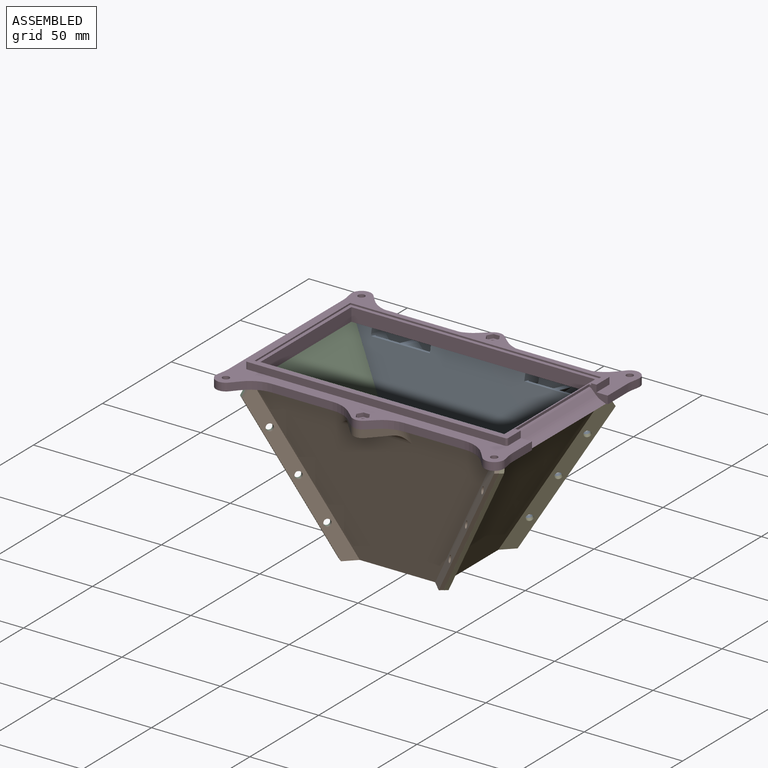
[diagram: assembled view]
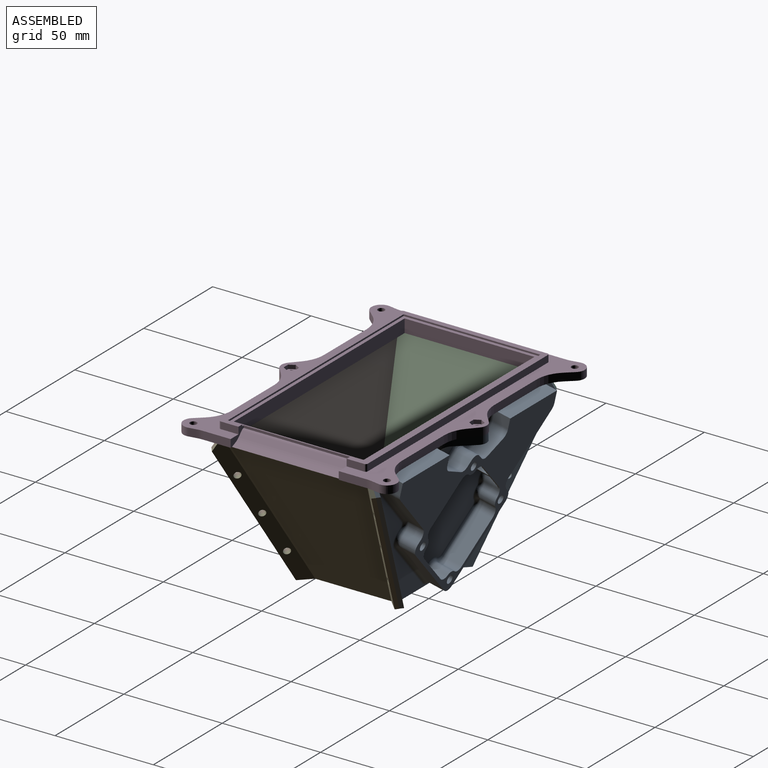
[diagram: assembled view, second angle]
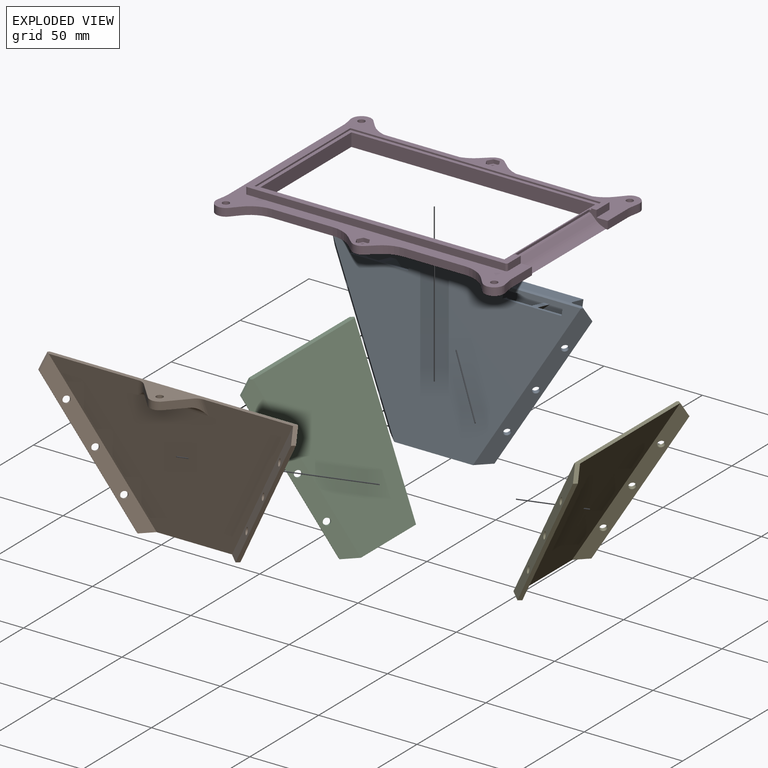
[diagram: exploded view]
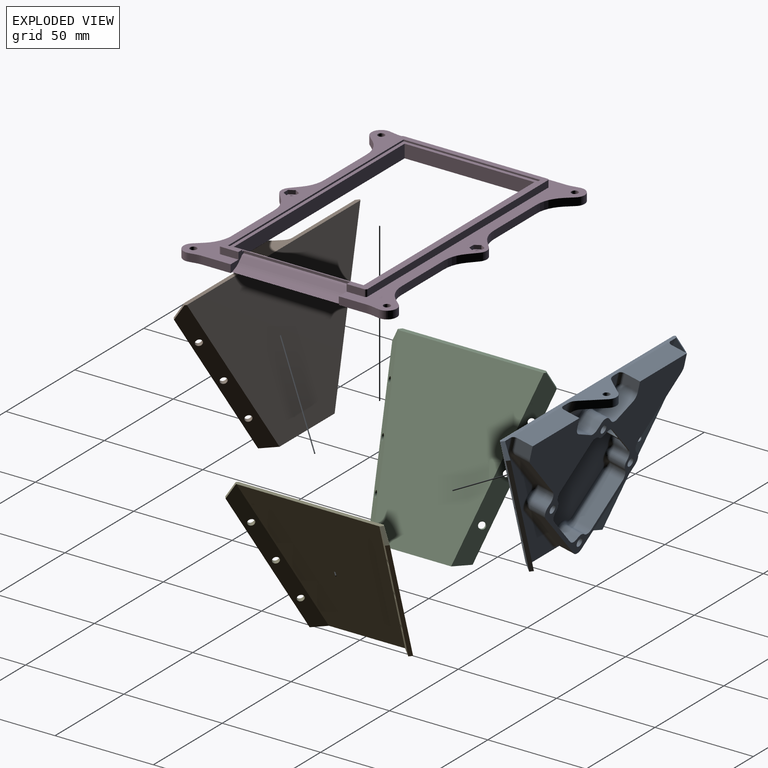
[diagram: exploded view, second angle]
ASSEMBLY  parts=5 mates=3
PART A: 176 faces, bbox 131.1x32.3x80.3 mm
  f0: plane 103.24x59.64mm, normal (0,-0.98,0.22), area 2638.9mm2, adj f14,f15,f91,f92,f125,f126,f127,f128
  f1: plane 47.62x34.35mm, normal (0,0.98,-0.22), area 724.2mm2, adj f10,f11,f12,f15,f70,f71,f78,f89
  f2: plane 7.47x3.54mm, normal (0,-0.98,0.22), area 20.1mm2, adj f21,f46,f158,f159,f160
  f3: plane 14.14x3.83mm, normal (0,-0.98,0.22), area 29.5mm2, adj f44,f152,f153,f154,f155
  f4: plane 7.47x3.54mm, normal (0,-0.98,0.22), area 20.1mm2, adj f21,f45,f142,f143,f144
  f5: plane 7.89x4.38mm, normal (0,-0.98,0.22), area 15.9mm2, adj f21,f22,f43,f123,f124
  f6: plane 7.89x4.38mm, normal (0,-0.98,0.22), area 15.9mm2, adj f21,f26,f42,f110,f111
  f7: plane 11.6x7.37mm, normal (1,0,0), area 51.8mm2, adj f14,f20,f77,f93,f96,f171
  f8: plane 11.35x5.14mm, normal (-1,0,0), area 31.1mm2, adj f20,f77,f93,f97
  f9: plane 12.15x8.26mm, normal (0.48,0.19,0.86), area 96.8mm2, adj f93,f96,f109,f169
  f10: plane 11.6x7.37mm, normal (-1,0,0), area 51.8mm2, adj f1,f15,f20,f78,f99,f161
  f11: plane 11.35x5.14mm, normal (1,0,0), area 31.1mm2, adj f1,f20,f78,f98
  f12: plane 12.15x8.26mm, normal (-0.48,0.19,0.86), area 96.8mm2, adj f1,f95,f99,f163
  f13: plane 112x75.01mm, normal (0,-0.98,0.22), area 2498.1mm2, adj f17,f19,f47,f48,f49,f50,f51,f52
  f14: plane 29.83x10.74mm, normal (0,-0.22,-0.98), area 88.1mm2, adj f0,f7,f20,f93,f97,f125,f171,f174
  f15: plane 29.83x10.74mm, normal (0,-0.22,-0.98), area 88.1mm2, adj f0,f1,f10,f20,f98,f141,f161,f172
  f16: plane 14.14x3.83mm, normal (0,-0.98,0.22), area 29.5mm2, adj f44,f147,f148,f149,f150
  f17: plane 8.3x3.95mm, normal (-0.71,-0.15,-0.69), area 25.8mm2, adj f13,f53,f100,f149
  f18: plane 113.12x66.99mm, normal (0,-0.98,0.22), area 1006.5mm2, adj f22,f26,f28,f29,f36,f111,f112,f113
  f19: plane 8.12x3.12mm, normal (0.71,-0.15,-0.69), area 16.2mm2, adj f13,f55,f102,f120
  f20: plane 126x77mm, normal (0,0.98,-0.22), area 6305mm2, adj f7,f8,f10,f11,f14,f15,f21,f23
  f21: plane 127.58x15.31mm, normal (0,0,-1), area 464.3mm2, adj f2,f4,f5,f6,f20,f23,f25,f37
  f22: plane 76.95x44.73mm, normal (-0.68,-0.69,-0.23), area 575.4mm2, adj f5,f18,f24,f28,f30,f31,f32,f36
  f23: plane 77x45.52mm, normal (0.68,0.69,0.23), area 661.1mm2, adj f20,f21,f24,f30,f31,f32,f36,f43
  f24: plane 69.9x40.66mm, normal (0.55,-0.69,0.46), area 163.1mm2, adj f22,f23,f36,f43
  f25: plane 77x45.52mm, normal (-0.68,0.69,0.23), area 661.1mm2, adj f20,f21,f27,f33,f34,f35,f36,f42
  f26: plane 76.95x44.73mm, normal (0.68,-0.69,-0.23), area 575.4mm2, adj f6,f18,f27,f29,f33,f34,f35,f36
  f27: plane 69.9x40.66mm, normal (-0.55,-0.69,0.46), area 163.1mm2, adj f25,f26,f36,f42
  f28: plane 0.03x0.03mm, normal (-0.48,0.19,0.86), area 0mm2, adj f18,f22,f36
  f29: plane 0.03x0.03mm, normal (0.48,0.19,0.86), area 0mm2, adj f18,f26,f36
  f30: cylinder r=1.72mm len=3.89mm, axis (-0.68,-0.69,-0.23), area 21.7mm2, adj f22,f23
  f31: cylinder r=1.72mm len=3.89mm, axis (-0.68,-0.69,-0.23), area 21.7mm2, adj f22,f23
  f32: cylinder r=1.72mm len=3.89mm, axis (-0.68,-0.69,-0.23), area 21.7mm2, adj f22,f23
  f33: cylinder r=1.72mm len=3.89mm, axis (0.68,-0.69,-0.23), area 21.7mm2, adj f25,f26
  f34: cylinder r=1.72mm len=3.89mm, axis (0.68,-0.69,-0.23), area 21.7mm2, adj f25,f26
  f35: cylinder r=1.72mm len=3.89mm, axis (0.68,-0.69,-0.23), area 21.7mm2, adj f25,f26
  f36: plane 52.96x7.66mm, normal (0,0,1), area 115.3mm2, adj f18,f20,f22,f23,f24,f25,f26,f27
  f37: plane 10.84x9.83mm, normal (-0.74,-0.67,0), area 55.6mm2, adj f21,f38,f41,f44,f45
  f38: cylinder r=5mm len=7.41mm, axis (0,0,-1), area 33.4mm2, adj f21,f37,f39,f41
  f39: plane 10.84x9.83mm, normal (0.74,-0.67,0), area 55.6mm2, adj f21,f38,f41,f44,f46
  f40: cylinder r=1.72mm len=4mm, axis (0,0,-1), area 43.4mm2, adj f21,f41
  f41: plane 22.6x10.02mm, normal (0,0,1), area 124.8mm2, adj f37,f38,f39,f40,f44
  f42: plane 7.1x5.37mm, normal (-0.53,-0.67,-0.52), area 17.2mm2, adj f6,f21,f25,f26,f27
  f43: plane 7.1x5.37mm, normal (0.53,-0.67,-0.52), area 17.2mm2, adj f5,f21,f22,f23,f24
  f44: cylinder r=5mm len=35.04mm, axis (-1,0,0), area 191.3mm2, adj f3,f16,f37,f39,f41,f45,f46,f146
  f45: cylinder r=5mm len=9.68mm, axis (0.19,-0.21,-0.96), area 27.2mm2, adj f4,f21,f37,f44,f145,f146
  f46: cylinder r=5mm len=9.68mm, axis (0.19,0.21,0.96), area 27.2mm2, adj f2,f21,f39,f44,f156,f157
  f47: cylinder r=4mm len=7.99mm, axis (0,0.98,-0.22), area 42.2mm2, adj f13,f69,f70,f166
  f48: cylinder r=4mm len=8.87mm, axis (0,0.98,-0.22), area 42.2mm2, adj f13,f71,f72,f137
  f49: plane 18.38x17.06mm, normal (0.71,-0.15,-0.69), area 193mm2, adj f13,f72,f73,f135
  f50: cylinder r=4mm len=7.99mm, axis (0,0.98,-0.22), area 42.2mm2, adj f13,f73,f74,f133
  f51: plane 18.38x17.06mm, normal (-0.71,-0.15,-0.69), area 193mm2, adj f13,f74,f75,f131
  f52: plane 8.12x3.12mm, normal (-0.71,-0.15,-0.69), area 16.2mm2, adj f13,f59,f101,f114
  f53: cylinder r=4mm len=8.06mm, axis (0,0.98,-0.22), area 50.3mm2, adj f13,f17,f54,f150,f151,f152
  f54: plane 8.3x3.95mm, normal (0.71,-0.15,-0.69), area 25.8mm2, adj f13,f53,f103,f153
  f55: cylinder r=4mm len=9.03mm, axis (0,0.98,-0.22), area 50.3mm2, adj f13,f19,f56,f119
  f56: plane 30.73x29.7mm, normal (0.71,0.15,0.69), area 336mm2, adj f13,f55,f57,f118
  f57: cylinder r=4mm len=8.06mm, axis (0,0.98,-0.22), area 50.3mm2, adj f13,f56,f58,f117
  f58: plane 30.73x29.7mm, normal (-0.71,0.15,0.69), area 336mm2, adj f13,f57,f59,f116
  f59: cylinder r=4mm len=9.03mm, axis (0,0.98,-0.22), area 50.3mm2, adj f13,f52,f58,f115
  f60: cylinder r=2mm len=10.63mm, axis (0,0.98,-0.22), area 125.7mm2, adj f13,f68
  f61: cylinder r=2mm len=10.63mm, axis (0,0.98,-0.22), area 125.7mm2, adj f13,f67
  f62: cylinder r=2mm len=10.63mm, axis (0,0.98,-0.22), area 125.7mm2, adj f13,f66
  f63: cylinder r=2mm len=10.63mm, axis (0,0.98,-0.22), area 125.7mm2, adj f13,f65
  f64: cylinder r=4mm len=8.87mm, axis (0,0.98,-0.22), area 42.2mm2, adj f13,f75,f76,f129
  f65: plane 4x3.91mm, normal (0,-0.98,0.22), area 12.6mm2, adj f63
  f66: plane 4x3.91mm, normal (0,-0.98,0.22), area 12.6mm2, adj f62
  f67: plane 4x3.91mm, normal (0,-0.98,0.22), area 12.6mm2, adj f61
  f68: plane 4x3.91mm, normal (0,-0.98,0.22), area 12.6mm2, adj f60
  f69: cylinder r=4mm len=8.06mm, axis (0,0.98,-0.22), area 34.8mm2, adj f13,f47,f92,f93,f109,f167
  f70: cylinder r=4mm len=8.06mm, axis (0,0.98,-0.22), area 34.8mm2, adj f1,f13,f47,f91,f95,f165
  f71: cylinder r=4mm len=8.95mm, axis (0,0.98,-0.22), area 31.5mm2, adj f1,f13,f48,f91,f108,f138
  f72: cylinder r=4mm len=8.95mm, axis (0,0.98,-0.22), area 46.3mm2, adj f13,f48,f49,f136
  f73: cylinder r=4mm len=8.06mm, axis (0,0.98,-0.22), area 46.3mm2, adj f13,f49,f50,f134
  f74: cylinder r=4mm len=8.06mm, axis (0,0.98,-0.22), area 46.3mm2, adj f13,f50,f51,f132
  f75: cylinder r=4mm len=8.95mm, axis (0,0.98,-0.22), area 46.3mm2, adj f13,f51,f64,f130
  f76: cylinder r=4mm len=8.95mm, axis (0,0.98,-0.22), area 31.5mm2, adj f13,f64,f92,f93,f94,f128
  f77: plane 30x10.74mm, normal (0,0.22,0.98), area 330mm2, adj f7,f8,f20,f93
  f78: plane 30x10.74mm, normal (0,0.22,0.98), area 330mm2, adj f1,f10,f11,f20
  f79: plane 8.98x7.03mm, normal (-1,0,0), area 43.4mm2, adj f13,f80,f106,f160
  f80: plane 38x9.77mm, normal (0,-0.22,-0.98), area 341.7mm2, adj f13,f21,f79,f81,f124,f160
  f81: plane 9.18x7.93mm, normal (1,0,0), area 50.9mm2, adj f13,f80,f107,f124
  f82: plane 9.18x7.93mm, normal (-1,0,0), area 50.9mm2, adj f13,f83,f105,f110
  f83: plane 38x9.77mm, normal (0,-0.22,-0.98), area 341.7mm2, adj f13,f21,f82,f84,f110,f142
  f84: plane 8.98x7.03mm, normal (1,0,0), area 43.4mm2, adj f13,f83,f104,f142
  f85: plane 10.07x8.81mm, normal (-0.42,-0.2,-0.89), area 88.5mm2, adj f13,f103,f106,f155,f156,f157,f158
  f86: plane 25.2x23.77mm, normal (0.71,0.15,0.69), area 270.5mm2, adj f13,f102,f107,f122
  f87: plane 25.2x23.77mm, normal (-0.71,0.15,0.69), area 270.5mm2, adj f13,f101,f105,f112
  f88: plane 10.07x8.81mm, normal (0.42,-0.2,-0.89), area 88.5mm2, adj f13,f100,f104,f144,f145,f146,f147
  f89: plane 26.54x25.93mm, normal (0.7,-0.15,-0.69), area 255.2mm2, adj f1,f98,f108,f140
  f90: plane 26.54x25.93mm, normal (-0.7,-0.15,-0.69), area 255.2mm2, adj f93,f94,f97,f126
  f91: plane 17.06x16.87mm, normal (0.71,0.15,0.69), area 42.1mm2, adj f0,f1,f13,f70,f71,f172,f173
  f92: plane 17.06x16.87mm, normal (-0.71,0.15,0.69), area 42.1mm2, adj f0,f13,f69,f76,f93,f174,f175
  f93: plane 47.62x34.35mm, normal (0,0.98,-0.22), area 724.2mm2, adj f7,f8,f9,f14,f69,f76,f77,f90
  f94: cylinder r=4mm len=7.67mm, axis (0,0.98,-0.22), area 29.4mm2, adj f76,f90,f93,f127
  f95: cylinder r=4mm len=6.94mm, axis (0,0.98,-0.22), area 24.5mm2, adj f1,f12,f70,f164
  f96: cylinder r=4mm len=7.59mm, axis (0,-0.98,0.22), area 30.1mm2, adj f7,f9,f93,f170
  f97: cylinder r=4mm len=11.35mm, axis (0,-0.98,0.22), area 26.9mm2, adj f8,f14,f20,f90,f93,f125
  f98: cylinder r=4mm len=11.35mm, axis (0,-0.98,0.22), area 26.9mm2, adj f1,f11,f15,f20,f89,f141
  f99: cylinder r=4mm len=7.59mm, axis (0,0.98,-0.22), area 30.1mm2, adj f1,f10,f12,f162
  f100: cylinder r=4mm len=8.06mm, axis (0,-0.98,0.22), area 38.9mm2, adj f13,f17,f88,f148
  f101: cylinder r=4mm len=9.03mm, axis (0,-0.98,0.22), area 50.1mm2, adj f13,f52,f87,f113
  f102: cylinder r=4mm len=9.03mm, axis (0,-0.98,0.22), area 50.1mm2, adj f13,f19,f86,f121
  f103: cylinder r=4mm len=8.06mm, axis (0,-0.98,0.22), area 38.9mm2, adj f13,f54,f85,f154
  f104: cylinder r=4mm len=8.6mm, axis (0,-0.98,0.22), area 36.5mm2, adj f13,f84,f88,f143
  f105: cylinder r=4mm len=8.42mm, axis (0,0.98,-0.22), area 24.9mm2, adj f13,f82,f87,f111
  f106: cylinder r=4mm len=8.6mm, axis (0,-0.98,0.22), area 36.5mm2, adj f13,f79,f85,f159
  f107: cylinder r=4mm len=8.42mm, axis (0,0.98,-0.22), area 24.9mm2, adj f13,f81,f86,f123
  f108: cylinder r=4mm len=7.67mm, axis (0,0.98,-0.22), area 29.4mm2, adj f1,f71,f89,f139
  f109: cylinder r=4mm len=6.94mm, axis (0,0.98,-0.22), area 24.5mm2, adj f9,f69,f93,f168
  f110: cylinder r=2mm len=6.64mm, axis (0,0.22,0.98), area 20mm2, adj f6,f82,f83,f111
  f111: torus R=6mm, axis (0,0.98,-0.22), area 11.4mm2, adj f6,f18,f26,f105,f110,f112
  f112: cylinder r=2mm len=25.19mm, axis (-0.7,-0.15,-0.69), area 106.2mm2, adj f18,f87,f111,f113
  f113: torus R=2mm, axis (0,0.98,-0.22), area 16.1mm2, adj f18,f101,f112,f114
  f114: cylinder r=2mm len=3.21mm, axis (-0.71,0.15,0.69), area 6.4mm2, adj f18,f52,f113,f115
  f115: torus R=6mm, axis (0,0.98,-0.22), area 23.3mm2, adj f18,f59,f114,f116
  f116: cylinder r=2mm len=31.11mm, axis (0.71,0.15,0.69), area 131.9mm2, adj f18,f58,f115,f117
  f117: torus R=6mm, axis (0,0.98,-0.22), area 23.3mm2, adj f18,f57,f116,f118
  f118: cylinder r=2mm len=31.11mm, axis (0.71,-0.15,-0.69), area 131.9mm2, adj f18,f56,f117,f119
  f119: torus R=6mm, axis (0,0.98,-0.22), area 23.3mm2, adj f18,f55,f118,f120
  f120: cylinder r=2mm len=3.21mm, axis (-0.71,-0.15,-0.69), area 6.4mm2, adj f18,f19,f119,f121
  f121: torus R=2mm, axis (0,0.98,-0.22), area 16.1mm2, adj f18,f102,f120,f122
  f122: cylinder r=2mm len=25.19mm, axis (-0.7,0.15,0.69), area 106.2mm2, adj f18,f86,f121,f123
  f123: torus R=6mm, axis (0,0.98,-0.22), area 11.4mm2, adj f5,f18,f22,f107,f122,f124
  f124: cylinder r=2mm len=6.64mm, axis (0,-0.22,-0.98), area 20mm2, adj f5,f80,f81,f123
  f125: torus R=2mm, axis (0,0.98,-0.22), area 4.4mm2, adj f0,f14,f97,f126
  f126: cylinder r=2mm len=27.33mm, axis (0.71,-0.15,-0.69), area 114.5mm2, adj f0,f90,f125,f127
  f127: torus R=6mm, axis (0,0.98,-0.22), area 15.6mm2, adj f0,f94,f126,f128
  f128: torus R=2mm, axis (0,0.98,-0.22), area 9.5mm2, adj f0,f76,f127,f129
  f129: torus R=6mm, axis (0,0.98,-0.22), area 19.6mm2, adj f0,f64,f128,f130
  f130: torus R=2mm, axis (0,0.98,-0.22), area 14.9mm2, adj f0,f75,f129,f131
  f131: cylinder r=2mm len=18.47mm, axis (-0.71,0.15,0.69), area 75.8mm2, adj f0,f51,f130,f132
  f132: torus R=2mm, axis (0,0.98,-0.22), area 14.9mm2, adj f0,f74,f131,f133
  f133: torus R=6mm, axis (0,0.98,-0.22), area 19.6mm2, adj f0,f50,f132,f134
  f134: torus R=2mm, axis (0,0.98,-0.22), area 14.9mm2, adj f0,f73,f133,f135
  f135: cylinder r=2mm len=18.47mm, axis (-0.71,-0.15,-0.69), area 75.8mm2, adj f0,f49,f134,f136
  f136: torus R=2mm, axis (0,0.98,-0.22), area 14.9mm2, adj f0,f72,f135,f137
  f137: torus R=6mm, axis (0,0.98,-0.22), area 19.6mm2, adj f0,f48,f136,f138
  f138: torus R=2mm, axis (0,0.98,-0.22), area 9.5mm2, adj f0,f71,f137,f139
  f139: torus R=6mm, axis (0,0.98,-0.22), area 15.6mm2, adj f0,f108,f138,f140
  f140: cylinder r=2mm len=27.33mm, axis (0.71,0.15,0.69), area 114.5mm2, adj f0,f89,f139,f141
  f141: torus R=2mm, axis (0,0.98,-0.22), area 4.4mm2, adj f0,f15,f98,f140
  f142: cylinder r=2mm len=5.73mm, axis (0,-0.22,-0.98), area 17.1mm2, adj f4,f83,f84,f143
  f143: torus R=2mm, axis (0,0.98,-0.22), area 11.7mm2, adj f4,f104,f142,f144
  f144: cylinder r=2mm len=2.6mm, axis (0.91,0.09,0.41), area 3mm2, adj f4,f88,f143,f145
  f145: bspline ~2.51x2.05mm, area 1.2mm2, adj f45,f88,f144,f146
  f146: bspline ~4.3x4.13mm, area 2.5mm2, adj f44,f45,f88,f145,f147
  f147: cylinder r=2mm len=9.01mm, axis (0.91,0.09,0.41), area 28.3mm2, adj f16,f88,f146,f148
  f148: torus R=2mm, axis (0,0.98,-0.22), area 12.5mm2, adj f16,f100,f147,f149
  f149: cylinder r=2mm len=4.04mm, axis (-0.71,0.15,0.69), area 10.1mm2, adj f16,f17,f148,f150
  f150: torus R=6mm, axis (0,0.98,-0.22), area 4.4mm2, adj f16,f53,f149,f151
  f151: bspline ~7.33x3.63mm, area 16.3mm2, adj f44,f53,f150,f152
  f152: torus R=6mm, axis (0,0.98,-0.22), area 4.4mm2, adj f3,f53,f151,f153
  f153: cylinder r=2mm len=4.04mm, axis (-0.71,-0.15,-0.69), area 10.1mm2, adj f3,f54,f152,f154
  f154: torus R=2mm, axis (0,0.98,-0.22), area 12.5mm2, adj f3,f103,f153,f155
  f155: cylinder r=2mm len=9.01mm, axis (0.91,-0.09,-0.41), area 28.3mm2, adj f3,f85,f154,f156
  f156: bspline ~4.3x4.13mm, area 2.5mm2, adj f44,f46,f85,f155,f157
  f157: bspline ~2.51x2.05mm, area 1.2mm2, adj f46,f85,f156,f158
  f158: cylinder r=2mm len=2.6mm, axis (0.91,-0.09,-0.41), area 3mm2, adj f2,f85,f157,f159
  f159: torus R=2mm, axis (0,0.98,-0.22), area 11.7mm2, adj f2,f106,f158,f160
  f160: cylinder r=2mm len=5.73mm, axis (0,0.22,0.98), area 17.1mm2, adj f2,f79,f80,f159
  f161: cylinder r=2mm len=2.19mm, axis (0,-0.22,-0.98), area 3.5mm2, adj f0,f10,f15,f162
  f162: torus R=6mm, axis (0,0.98,-0.22), area 15.9mm2, adj f0,f99,f161,f163
  f163: cylinder r=2mm len=13.11mm, axis (-0.88,-0.1,-0.47), area 43.4mm2, adj f0,f12,f162,f164
  f164: torus R=6mm, axis (0,0.98,-0.22), area 13mm2, adj f0,f95,f163,f165
  f165: torus R=2mm, axis (0,0.98,-0.22), area 10.7mm2, adj f0,f70,f164,f166
  f166: torus R=6mm, axis (0,0.98,-0.22), area 19.6mm2, adj f0,f47,f165,f167
  f167: torus R=2mm, axis (0,0.98,-0.22), area 10.7mm2, adj f0,f69,f166,f168
  f168: torus R=6mm, axis (0,0.98,-0.22), area 13mm2, adj f0,f109,f167,f169
  f169: cylinder r=2mm len=13.11mm, axis (-0.88,0.1,0.47), area 43.4mm2, adj f0,f9,f168,f170
  f170: torus R=6mm, axis (0,0.98,-0.22), area 15.9mm2, adj f0,f96,f169,f171
  f171: cylinder r=2mm len=2.19mm, axis (0,0.22,0.98), area 3.5mm2, adj f0,f7,f14,f170
  f172: plane 23.51x22.99mm, normal (-0.68,0.16,0.72), area 287.1mm2, adj f0,f1,f15,f91
  f173: plane 21.96x21.61mm, normal (0.68,-0.16,-0.72), area 268.2mm2, adj f0,f1,f15,f91
  f174: plane 23.51x22.99mm, normal (0.68,0.16,0.72), area 287.1mm2, adj f0,f14,f92,f93
  f175: plane 21.96x21.61mm, normal (-0.68,-0.16,-0.72), area 268.2mm2, adj f0,f14,f92,f93
PART B: 28 faces, bbox 131x32.2x78.1 mm
  f0: plane 124.25x77mm, normal (0,-0.98,0.22), area 6131.4mm2, adj f1,f3,f7,f9,f10,f17,f23,f24
  f1: plane 127.46x15.2mm, normal (0,0,-1), area 464.3mm2, adj f0,f2,f4,f6,f18,f19,f20,f21
  f2: plane 126x77mm, normal (0,0.98,-0.22), area 6544.9mm2, adj f1,f4,f6,f17
  f3: plane 76.95x44.73mm, normal (-0.68,-0.69,-0.23), area 575.4mm2, adj f0,f5,f9,f11,f12,f13,f17,f24
  f4: plane 77x45.52mm, normal (0.68,0.69,0.23), area 661.1mm2, adj f1,f2,f5,f11,f12,f13,f17,f24
  f5: plane 69.9x40.66mm, normal (0.55,-0.69,0.46), area 163.1mm2, adj f3,f4,f17,f24
  f6: plane 77x45.52mm, normal (-0.68,0.69,0.23), area 661.1mm2, adj f1,f2,f8,f14,f15,f16,f17,f23
  f7: plane 76.95x44.73mm, normal (0.68,-0.69,-0.23), area 575.4mm2, adj f0,f8,f10,f14,f15,f16,f17,f23
  f8: plane 69.9x40.66mm, normal (-0.55,-0.69,0.46), area 163.1mm2, adj f6,f7,f17,f23
  f9: plane 0.03x0.03mm, normal (-0.48,0.19,0.86), area 0mm2, adj f0,f3,f17
  f10: plane 0.03x0.03mm, normal (0.48,0.19,0.86), area 0mm2, adj f0,f7,f17
  f11: cylinder r=1.72mm len=3.89mm, axis (-0.68,-0.69,-0.23), area 21.7mm2, adj f3,f4
  f12: cylinder r=1.72mm len=3.89mm, axis (-0.68,-0.69,-0.23), area 21.7mm2, adj f3,f4
  f13: cylinder r=1.72mm len=3.89mm, axis (-0.68,-0.69,-0.23), area 21.7mm2, adj f3,f4
  f14: cylinder r=1.72mm len=3.89mm, axis (0.68,-0.69,-0.23), area 21.7mm2, adj f6,f7
  f15: cylinder r=1.72mm len=3.89mm, axis (0.68,-0.69,-0.23), area 21.7mm2, adj f6,f7
  f16: cylinder r=1.72mm len=3.89mm, axis (0.68,-0.69,-0.23), area 21.7mm2, adj f6,f7
  f17: plane 52.96x7.66mm, normal (0,0,1), area 115.3mm2, adj f0,f2,f3,f4,f5,f6,f7,f8
  f18: plane 10.77x9.76mm, normal (-0.74,-0.67,0), area 55.6mm2, adj f1,f19,f22,f25,f26
  f19: cylinder r=5mm len=7.41mm, axis (0,0,-1), area 33.4mm2, adj f1,f18,f20,f22
  f20: plane 10.77x9.76mm, normal (0.74,-0.67,0), area 55.6mm2, adj f1,f19,f22,f25,f27
  f21: cylinder r=1.72mm len=4mm, axis (0,0,-1), area 43.4mm2, adj f1,f22
  f22: plane 22.6x10.02mm, normal (0,0,1), area 124.8mm2, adj f18,f19,f20,f21,f25
  f23: plane 7.1x5.37mm, normal (-0.53,-0.67,-0.52), area 17.2mm2, adj f0,f1,f6,f7,f8
  f24: plane 7.1x5.37mm, normal (0.53,-0.67,-0.52), area 17.2mm2, adj f0,f1,f3,f4,f5
  f25: cylinder r=5mm len=36.1mm, axis (-1,0,0), area 195.3mm2, adj f0,f18,f20,f22,f26,f27
  f26: cylinder r=5mm len=10.08mm, axis (0.19,-0.21,-0.96), area 27.2mm2, adj f0,f1,f18,f25
  f27: cylinder r=5mm len=10.08mm, axis (0.19,0.21,0.96), area 27.2mm2, adj f0,f1,f20,f25
PART C: 18 faces, bbox 47.1x83.6x77 mm
  f0: plane 77x72.74mm, normal (0.87,0,0.49), area 4916.2mm2, adj f3,f6,f14,f15
  f1: plane 77x74mm, normal (-0.87,0,-0.49), area 5027mm2, adj f2,f5,f14,f15
  f2: plane 77x45.52mm, normal (-0.68,-0.69,-0.23), area 661.1mm2, adj f1,f4,f11,f12,f13,f14,f15,f17
  f3: plane 77x44.85mm, normal (0.68,0.69,0.23), area 586.7mm2, adj f0,f4,f11,f12,f13,f14,f15,f17
  f4: plane 69.9x40.66mm, normal (0.55,-0.69,0.46), area 163.1mm2, adj f2,f3,f15,f17
  f5: plane 77x45.52mm, normal (-0.68,0.69,-0.23), area 661.1mm2, adj f1,f7,f8,f9,f10,f14,f15,f16
  f6: plane 77x44.85mm, normal (0.68,-0.69,0.23), area 586.7mm2, adj f0,f7,f8,f9,f10,f14,f15,f16
  f7: plane 69.9x40.66mm, normal (0.55,0.69,0.46), area 163.1mm2, adj f5,f6,f15,f16
  f8: cylinder r=1.72mm len=3.89mm, axis (0.68,-0.69,0.23), area 21.7mm2, adj f5,f6
  f9: cylinder r=1.72mm len=3.89mm, axis (0.68,-0.69,0.23), area 21.7mm2, adj f5,f6
  f10: cylinder r=1.72mm len=3.89mm, axis (0.68,-0.69,0.23), area 21.7mm2, adj f5,f6
  f11: cylinder r=1.72mm len=3.89mm, axis (0.68,0.69,0.23), area 21.7mm2, adj f2,f3
  f12: cylinder r=1.72mm len=3.89mm, axis (0.68,0.69,0.23), area 21.7mm2, adj f2,f3
  f13: cylinder r=1.72mm len=3.89mm, axis (0.68,0.69,0.23), area 21.7mm2, adj f2,f3
  f14: plane 75.44x2.35mm, normal (0,0,-1), area 170.4mm2, adj f0,f1,f2,f3,f5,f6,f16,f17
  f15: plane 52.74x8.1mm, normal (0,0,1), area 125.6mm2, adj f0,f1,f2,f3,f4,f5,f6,f7
  f16: plane 7.1x5.37mm, normal (0.53,0.67,-0.52), area 17.2mm2, adj f5,f6,f7,f14
  f17: plane 7.1x5.37mm, normal (0.53,-0.67,-0.52), area 17.2mm2, adj f2,f3,f4,f14
PART D: 120 faces, bbox 146.4x108.4x7.5 mm
  f0: plane 4.99x3.83mm, normal (0,-1,0), area 11.4mm2, adj f4,f14,f15,f20,f46,f115,f117,f118
  f1: plane 4.99x3.83mm, normal (0,1,0), area 11.4mm2, adj f3,f5,f14,f20,f50,f115,f117,f118
  f2: plane 14.27x4mm, normal (1,0,0), area 57.1mm2, adj f4,f10,f13,f68
  f3: plane 9x3.5mm, normal (1,0,0), area 31.5mm2, adj f1,f10,f20,f53
  f4: plane 5.7x4mm, normal (0,-1,0), area 17.7mm2, adj f0,f2,f10,f13,f116,f117
  f5: plane 5.7x4mm, normal (0,1,0), area 17.7mm2, adj f1,f10,f13,f32,f116,f117
  f6: cylinder r=1.72mm len=3.45mm, axis (0,0,-1), area 19.5mm2, adj f10,f114
  f7: cylinder r=1.72mm len=3.45mm, axis (0,0,-1), area 19.5mm2, adj f10,f113
  f8: cylinder r=1.72mm len=3.45mm, axis (0,0,-1), area 19.5mm2, adj f10,f112
  f9: cylinder r=1.72mm len=3.45mm, axis (0,0,-1), area 19.5mm2, adj f10,f111
  f10: plane 146.4x108.4mm, normal (0,0,1), area 2889mm2, adj f2,f3,f4,f5,f6,f7,f8,f9
  f11: cylinder r=1.72mm len=3.45mm, axis (0,0,-1), area 21.7mm2, adj f13,f110
  f12: cylinder r=1.72mm len=3.45mm, axis (0,0,-1), area 21.7mm2, adj f13,f103
  f13: plane 146.4x108.4mm, normal (0,0,-1), area 4904mm2, adj f2,f4,f5,f11,f12,f16,f17,f18
  f14: plane 127.5x69.5mm, normal (0,0,1), area 617.9mm2, adj f0,f1,f15,f16,f17,f18,f19,f49
  f15: plane 7.25x0.8mm, normal (-1,0,0), area 5.8mm2, adj f0,f14,f20,f51
  f16: plane 66x6.7mm, normal (1,0,0), area 442.2mm2, adj f13,f14,f17,f19
  f17: plane 124x6.7mm, normal (0,-1,0), area 830.8mm2, adj f13,f14,f16,f18
  f18: plane 66x6.7mm, normal (-1,0,0), area 442.2mm2, adj f13,f14,f17,f19
  f19: plane 124x6.7mm, normal (0,1,0), area 830.8mm2, adj f13,f14,f16,f18
  f20: plane 133x75mm, normal (0,0,1), area 961.6mm2, adj f0,f1,f3,f15,f45,f46,f47,f48
  f21: plane 4x3.71mm, normal (-0.98,0.18,0), area 15.1mm2, adj f10,f13,f22,f58
  f22: cylinder r=5mm len=8.74mm, axis (0,0,-1), area 51.9mm2, adj f10,f13,f21,f23
  f23: plane 4x3.93mm, normal (0.75,-0.66,0), area 21mm2, adj f10,f13,f22,f57
  f24: plane 30.91x4mm, normal (0,-1,0), area 123.6mm2, adj f10,f13,f57,f59
  f25: plane 4.12x4mm, normal (-0.67,-0.75,0), area 22.1mm2, adj f10,f13,f26,f59
  f26: cylinder r=5mm len=6.65mm, axis (0,0,-1), area 29.1mm2, adj f10,f13,f25,f27
  f27: plane 4.12x4mm, normal (0.67,-0.75,0), area 22.1mm2, adj f10,f13,f26,f60
  f28: plane 30.91x4mm, normal (0,-1,0), area 123.6mm2, adj f10,f13,f60,f62
  f29: plane 4x3.93mm, normal (-0.75,-0.66,0), area 21mm2, adj f10,f13,f30,f62
  f30: cylinder r=5mm len=8.74mm, axis (0,0,-1), area 51.9mm2, adj f10,f13,f29,f31
  f31: plane 4x3.71mm, normal (0.98,0.18,0), area 15.1mm2, adj f10,f13,f30,f61
  f32: plane 14.27x4mm, normal (1,0,0), area 57.1mm2, adj f5,f10,f13,f61
  f33: plane 4x3.71mm, normal (0.98,-0.18,0), area 15.1mm2, adj f10,f13,f34,f68
  f34: cylinder r=5mm len=8.74mm, axis (0,0,-1), area 51.9mm2, adj f10,f13,f33,f35
  f35: plane 4x3.93mm, normal (-0.75,0.66,0), area 21mm2, adj f10,f13,f34,f67
  f36: plane 30.91x4mm, normal (0,1,0), area 123.6mm2, adj f10,f13,f66,f67
  f37: plane 4.12x4mm, normal (0.67,0.75,0), area 22.1mm2, adj f10,f13,f38,f66
  f38: cylinder r=5mm len=6.65mm, axis (0,0,-1), area 29.1mm2, adj f10,f13,f37,f39
  f39: plane 4.12x4mm, normal (-0.67,0.75,0), area 22.1mm2, adj f10,f13,f38,f65
  f40: plane 30.91x4mm, normal (0,1,0), area 123.6mm2, adj f10,f13,f64,f65
  f41: plane 4x3.93mm, normal (0.75,0.66,0), area 21mm2, adj f10,f13,f42,f64
  f42: cylinder r=5mm len=8.74mm, axis (0,0,-1), area 51.9mm2, adj f10,f13,f41,f43
  f43: plane 4x3.71mm, normal (-0.98,-0.18,0), area 15.1mm2, adj f10,f13,f42,f63
  f44: plane 83.54x4mm, normal (-1,0,0), area 334.2mm2, adj f10,f13,f58,f63
  f45: plane 131x3.5mm, normal (0,-1,0), area 458.5mm2, adj f10,f20,f53,f56
  f46: plane 9x3.5mm, normal (1,0,0), area 31.5mm2, adj f0,f10,f20,f54
  f47: plane 131x3.5mm, normal (0,1,0), area 458.5mm2, adj f10,f20,f54,f55
  f48: plane 73x3.5mm, normal (-1,0,0), area 255.5mm2, adj f10,f20,f55,f56
  f49: plane 127.5x0.8mm, normal (0,1,0), area 102mm2, adj f14,f20,f50,f52
  f50: plane 7.25x0.8mm, normal (-1,0,0), area 5.8mm2, adj f1,f14,f20,f49
  f51: plane 127.5x0.8mm, normal (0,-1,0), area 102mm2, adj f14,f15,f20,f52
  f52: plane 69.5x0.8mm, normal (1,0,0), area 55.6mm2, adj f14,f20,f49,f51
  f53: cylinder r=1mm len=3.5mm, axis (0,0,-1), area 5.5mm2, adj f3,f10,f20,f45
  f54: cylinder r=1mm len=3.5mm, axis (0,0,1), area 5.5mm2, adj f10,f20,f46,f47
  f55: cylinder r=1mm len=3.5mm, axis (0,0,-1), area 5.5mm2, adj f10,f20,f47,f48
  f56: cylinder r=1mm len=3.5mm, axis (0,0,1), area 5.5mm2, adj f10,f20,f45,f48
  f57: cylinder r=16mm len=11.97mm, axis (0,0,-1), area 54.1mm2, adj f10,f13,f23,f24
  f58: cylinder r=16mm len=4mm, axis (0,0,-1), area 11.4mm2, adj f10,f13,f21,f44
  f59: cylinder r=16mm len=10.65mm, axis (0,0,-1), area 46.6mm2, adj f10,f13,f24,f25
  f60: cylinder r=16mm len=10.65mm, axis (0,0,1), area 46.6mm2, adj f10,f13,f27,f28
  f61: cylinder r=16mm len=4mm, axis (0,0,-1), area 11.4mm2, adj f10,f13,f31,f32
  f62: cylinder r=16mm len=11.97mm, axis (0,0,-1), area 54.1mm2, adj f10,f13,f28,f29
  f63: cylinder r=16mm len=4mm, axis (0,0,1), area 11.4mm2, adj f10,f13,f43,f44
  f64: cylinder r=16mm len=11.97mm, axis (0,0,1), area 54.1mm2, adj f10,f13,f40,f41
  f65: cylinder r=16mm len=10.65mm, axis (0,0,-1), area 46.6mm2, adj f10,f13,f39,f40
  f66: cylinder r=16mm len=10.65mm, axis (0,0,1), area 46.6mm2, adj f10,f13,f36,f37
  f67: cylinder r=16mm len=11.97mm, axis (0,0,-1), area 54.1mm2, adj f10,f13,f35,f36
  f68: cylinder r=16mm len=4mm, axis (0,0,1), area 11.4mm2, adj f2,f10,f13,f33
  f69: plane 2.8x2mm, normal (0.5,0.87,0), area 6.5mm2, adj f13,f70,f74,f75
  f70: plane 3.23x2mm, normal (1,0,0), area 6.5mm2, adj f13,f69,f71,f75
  f71: plane 2.8x2mm, normal (0.5,-0.87,0), area 6.5mm2, adj f13,f70,f72,f75
  f72: plane 2.8x2mm, normal (-0.5,-0.87,0), area 6.5mm2, adj f13,f71,f73,f75
  f73: plane 3.23x2mm, normal (-1,0,0), area 6.5mm2, adj f13,f72,f74,f75
  f74: plane 2.8x2mm, normal (-0.5,0.87,0), area 6.5mm2, adj f13,f69,f73,f75
  f75: plane 6.47x5.6mm, normal (0,0,-1), area 27.2mm2, adj f69,f70,f71,f72,f73,f74
  f76: plane 2.8x2mm, normal (0.5,0.87,0), area 6.5mm2, adj f13,f77,f81,f82
  f77: plane 3.23x2mm, normal (1,0,0), area 6.5mm2, adj f13,f76,f78,f82
  f78: plane 2.8x2mm, normal (0.5,-0.87,0), area 6.5mm2, adj f13,f77,f79,f82
  f79: plane 2.8x2mm, normal (-0.5,-0.87,0), area 6.5mm2, adj f13,f78,f80,f82
  f80: plane 3.23x2mm, normal (-1,0,0), area 6.5mm2, adj f13,f79,f81,f82
  f81: plane 2.8x2mm, normal (-0.5,0.87,0), area 6.5mm2, adj f13,f76,f80,f82
  f82: plane 6.47x5.6mm, normal (0,0,-1), area 27.2mm2, adj f76,f77,f78,f79,f80,f81
  f83: plane 3.23x2mm, normal (1,0,0), area 6.5mm2, adj f13,f84,f88,f89
  f84: plane 2.8x2mm, normal (0.5,-0.87,0), area 6.5mm2, adj f13,f83,f85,f89
  f85: plane 2.8x2mm, normal (-0.5,-0.87,0), area 6.5mm2, adj f13,f84,f86,f89
  f86: plane 3.23x2mm, normal (-1,0,0), area 6.5mm2, adj f13,f85,f87,f89
  f87: plane 2.8x2mm, normal (-0.5,0.87,0), area 6.5mm2, adj f13,f86,f88,f89
  f88: plane 2.8x2mm, normal (0.5,0.87,0), area 6.5mm2, adj f13,f83,f87,f89
  f89: plane 6.47x5.6mm, normal (0,0,-1), area 27.2mm2, adj f83,f84,f85,f86,f87,f88
  f90: plane 2.8x2mm, normal (0.5,0.87,0), area 6.5mm2, adj f13,f91,f95,f96
  f91: plane 3.23x2mm, normal (1,0,0), area 6.5mm2, adj f13,f90,f92,f96
  f92: plane 2.8x2mm, normal (0.5,-0.87,0), area 6.5mm2, adj f13,f91,f93,f96
  f93: plane 2.8x2mm, normal (-0.5,-0.87,0), area 6.5mm2, adj f13,f92,f94,f96
  f94: plane 3.23x2mm, normal (-1,0,0), area 6.5mm2, adj f13,f93,f95,f96
  f95: plane 2.8x2mm, normal (-0.5,0.87,0), area 6.5mm2, adj f13,f90,f94,f96
  f96: plane 6.47x5.6mm, normal (0,0,-1), area 27.2mm2, adj f90,f91,f92,f93,f94,f95
  f97: plane 3.23x2mm, normal (0,-1,0), area 6.5mm2, adj f10,f98,f102,f103
  f98: plane 2.8x2mm, normal (0.87,-0.5,0), area 6.5mm2, adj f10,f97,f99,f103
  f99: plane 2.8x2mm, normal (0.87,0.5,0), area 6.5mm2, adj f10,f98,f100,f103
  f100: plane 3.23x2mm, normal (0,1,0), area 6.5mm2, adj f10,f99,f101,f103
  f101: plane 2.8x2mm, normal (-0.87,0.5,0), area 6.5mm2, adj f10,f100,f102,f103
  f102: plane 2.8x2mm, normal (-0.87,-0.5,0), area 6.5mm2, adj f10,f97,f101,f103
  f103: plane 6.47x5.6mm, normal (0,0,1), area 17.8mm2, adj f12,f97,f98,f99,f100,f101,f102
  f104: plane 3.23x2mm, normal (0,-1,0), area 6.5mm2, adj f10,f105,f109,f110
  f105: plane 2.8x2mm, normal (0.87,-0.5,0), area 6.5mm2, adj f10,f104,f106,f110
  f106: plane 2.8x2mm, normal (0.87,0.5,0), area 6.5mm2, adj f10,f105,f107,f110
  f107: plane 3.23x2mm, normal (0,1,0), area 6.5mm2, adj f10,f106,f108,f110
  f108: plane 2.8x2mm, normal (-0.87,0.5,0), area 6.5mm2, adj f10,f107,f109,f110
  f109: plane 2.8x2mm, normal (-0.87,-0.5,0), area 6.5mm2, adj f10,f104,f108,f110
  f110: plane 6.47x5.6mm, normal (0,0,1), area 17.8mm2, adj f11,f104,f105,f106,f107,f108,f109
  f111: plane 3.45x3.45mm, normal (0,0,1), area 9.3mm2, adj f9
  f112: plane 3.45x3.45mm, normal (0,0,1), area 9.3mm2, adj f8
  f113: plane 3.45x3.45mm, normal (0,0,1), area 9.3mm2, adj f7
  f114: plane 3.45x3.45mm, normal (0,0,1), area 9.3mm2, adj f6
  f115: plane 55x2.21mm, normal (0.71,0,0.71), area 171.8mm2, adj f0,f1,f117,f118
  f116: plane 55x2.35mm, normal (0.38,0,0.92), area 139.7mm2, adj f4,f5,f13,f117
  f117: cylinder r=8mm len=55mm, axis (0,-1,0), area 172.8mm2, adj f0,f1,f4,f5,f115,f116
  f118: cylinder r=2mm len=55mm, axis (0,-1,0), area 86.4mm2, adj f0,f1,f115,f119
  f119: plane 55x1.2mm, normal (1,0,0), area 66mm2, adj f0,f1,f14,f118
PART E: same geometry as C
PLACE A rot(axis=(1,0,0),180deg) t=(-4,73.91,0)mm
PLACE B rot(axis=(0,1,0),180deg) t=(126,-4,0)mm
PLACE C rot(axis=(0,1,0),180deg) t=(125.97,-3.96,-0.03)mm
PLACE D t=(-3,0,0)mm
PLACE E rot(axis=(1,0,0),180deg) t=(-3.97,73.96,-0.03)mm
MATE fastened E.f8 <-> B.f14  axis (-0.68,-0.69,0.23) through (104.97,3.39,-40.57)mm
MATE fastened A.f32 <-> E.f13  axis (0.68,-0.69,-0.23) through (116.46,71.06,-19.99)mm
MATE fastened B.f19 <-> D.f12  axis (0,0,1) through (61,-12.2,0)mm
